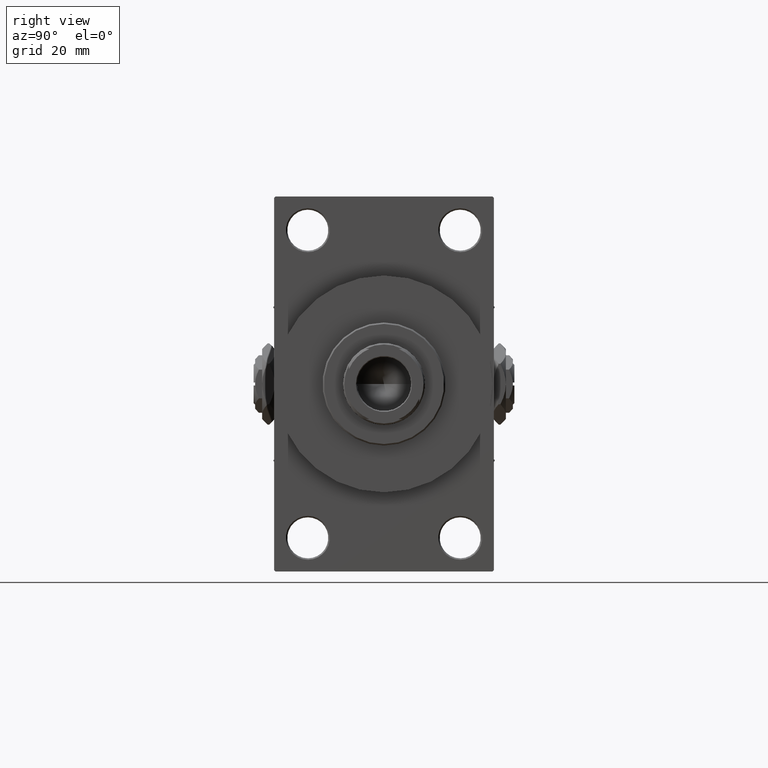
[diagram: clean part render]
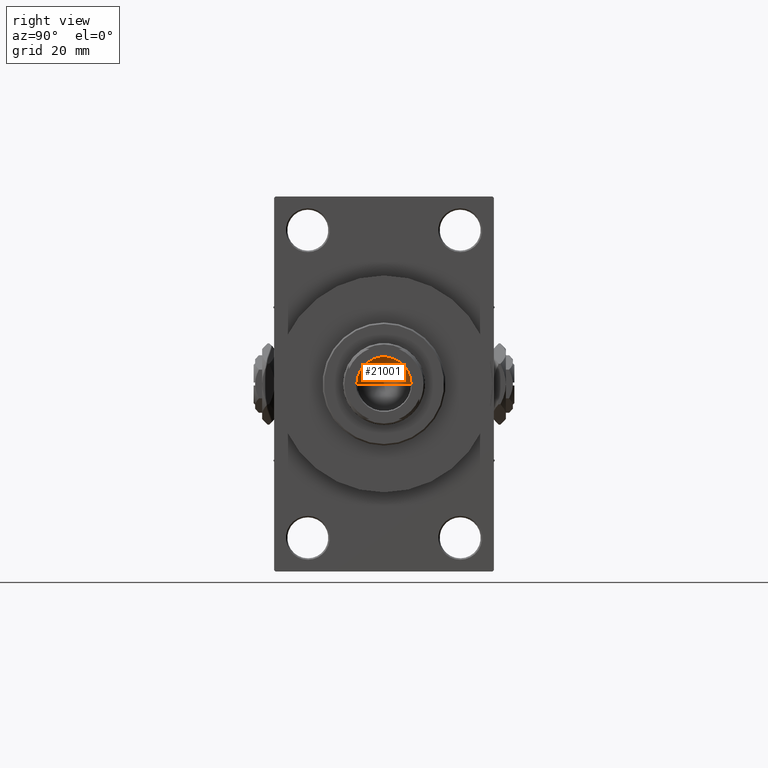
[diagram: same view with one face highlighted and labeled with its STEP entity id]
A machine part, right view. The second image highlights one B-rep face of the part: STEP entity #21001.
In plain terms, the highlighted conical surface has half-angle 59 deg.
Its self-contained STEP definition (entity closure, byte-faithful):
#1950 = EDGE_LOOP ( 'NONE', ( #43777, #18300, #47147 ) ) ;
#2353 = VECTOR ( 'NONE', #33377, 1000.000000000000000 ) ;
#16171 = LINE ( 'NONE', #23611, #17851 ) ;
#16315 = DIRECTION ( 'NONE',  ( -0.000000000000000000, -0.000000000000000000, 1.000000000000000000 ) ) ;
#16772 = VERTEX_POINT ( 'NONE', #29261 ) ;
#17851 = VECTOR ( 'NONE', #19892, 1000.000000000000000 ) ;
#18300 = ORIENTED_EDGE ( 'NONE', *, *, #42140, .T. ) ;
#19892 = DIRECTION ( 'NONE',  ( 0.8571673007021117785, 0.000000000000000000, 0.5150380749100550437 ) ) ;
#21001 = ADVANCED_FACE ( 'NONE', ( #46557 ), #44694, .F. ) ;
#21435 = VERTEX_POINT ( 'NONE', #28902 ) ;
#23175 = DIRECTION ( 'NONE',  ( 1.000000000000000000, 0.000000000000000000, 0.000000000000000000 ) ) ;
#23611 = CARTESIAN_POINT ( 'NONE',  ( 9.249999999999992895, 0.000000000000000000, 107.0000000000000142 ) ) ;
#23917 = CARTESIAN_POINT ( 'NONE',  ( 0.000000000000000000, 0.000000000000000000, 107.0000000000000142 ) ) ;
#24257 = DIRECTION ( 'NONE',  ( 1.000000000000000000, 0.000000000000000000, 0.000000000000000000 ) ) ;
#25230 = VERTEX_POINT ( 'NONE', #31027 ) ;
#26593 = EDGE_CURVE ( 'NONE', #21435, #25230, #16171, .T. ) ;
#28133 = DIRECTION ( 'NONE',  ( -0.000000000000000000, -0.000000000000000000, 1.000000000000000000 ) ) ;
#28902 = CARTESIAN_POINT ( 'NONE',  ( -9.769621978240258809E-15, 0.000000000000000000, 101.4420392739950785 ) ) ;
#29261 = CARTESIAN_POINT ( 'NONE',  ( -9.249999999999992895, 1.132798289211300712E-15, 107.0000000000000142 ) ) ;
#31027 = CARTESIAN_POINT ( 'NONE',  ( 9.249999999999992895, 0.000000000000000000, 107.0000000000000142 ) ) ;
#32529 = EDGE_CURVE ( 'NONE', #16772, #25230, #33067, .T. ) ;
#33067 = CIRCLE ( 'NONE', #36288, 9.249999999999992895 ) ;
#33377 = DIRECTION ( 'NONE',  ( -0.8571673007021117785, 1.049727191138617956E-16, 0.5150380749100550437 ) ) ;
#36288 = AXIS2_PLACEMENT_3D ( 'NONE', #23917, #28133, #23175 ) ;
#36775 = AXIS2_PLACEMENT_3D ( 'NONE', #47273, #16315, #24257 ) ;
#40831 = LINE ( 'NONE', #44775, #2353 ) ;
#42140 = EDGE_CURVE ( 'NONE', #21435, #16772, #40831, .T. ) ;
#43777 = ORIENTED_EDGE ( 'NONE', *, *, #26593, .F. ) ;
#44694 = CONICAL_SURFACE ( 'NONE', #36775, 9.249999999999992895, 1.029744258676653423 ) ;
#44775 = CARTESIAN_POINT ( 'NONE',  ( -9.249999999999992895, 1.132798289211300712E-15, 107.0000000000000142 ) ) ;
#46557 = FACE_OUTER_BOUND ( 'NONE', #1950, .T. ) ;
#47147 = ORIENTED_EDGE ( 'NONE', *, *, #32529, .T. ) ;
#47273 = CARTESIAN_POINT ( 'NONE',  ( 0.000000000000000000, 0.000000000000000000, 107.0000000000000142 ) ) ;